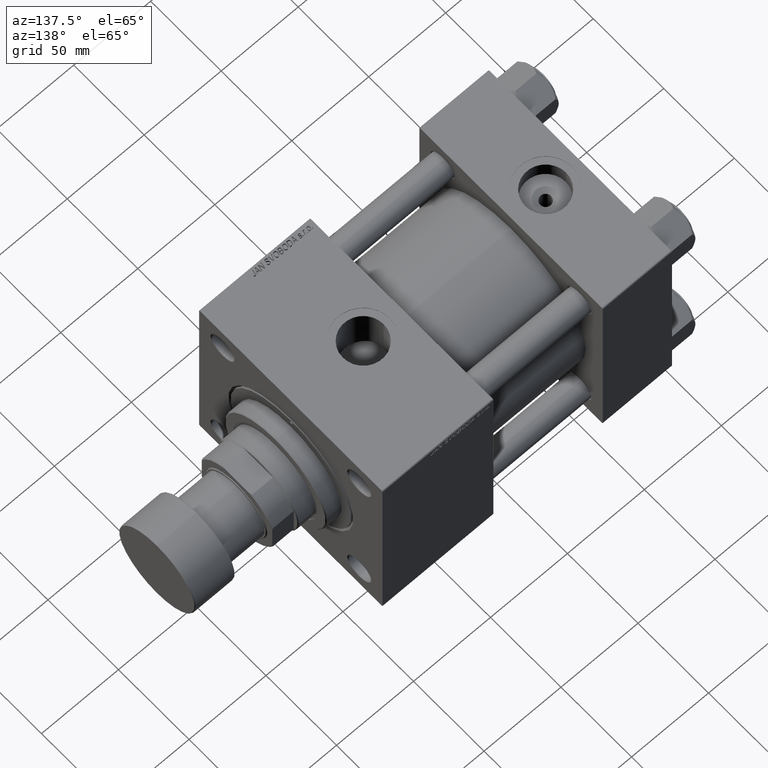
[diagram: clean part render]
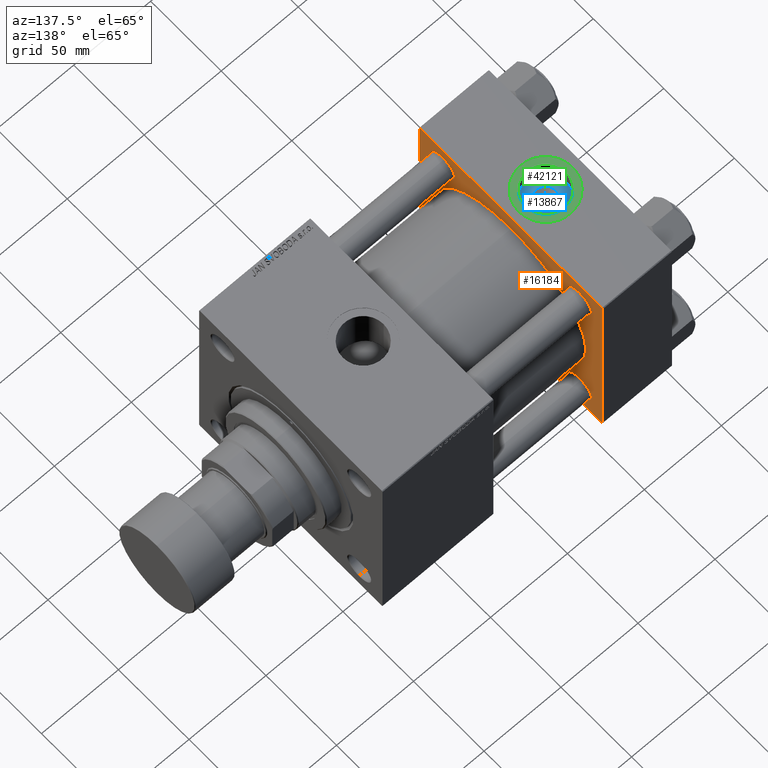
[diagram: same view with three faces highlighted in distinct colors, each labeled with its STEP entity id]
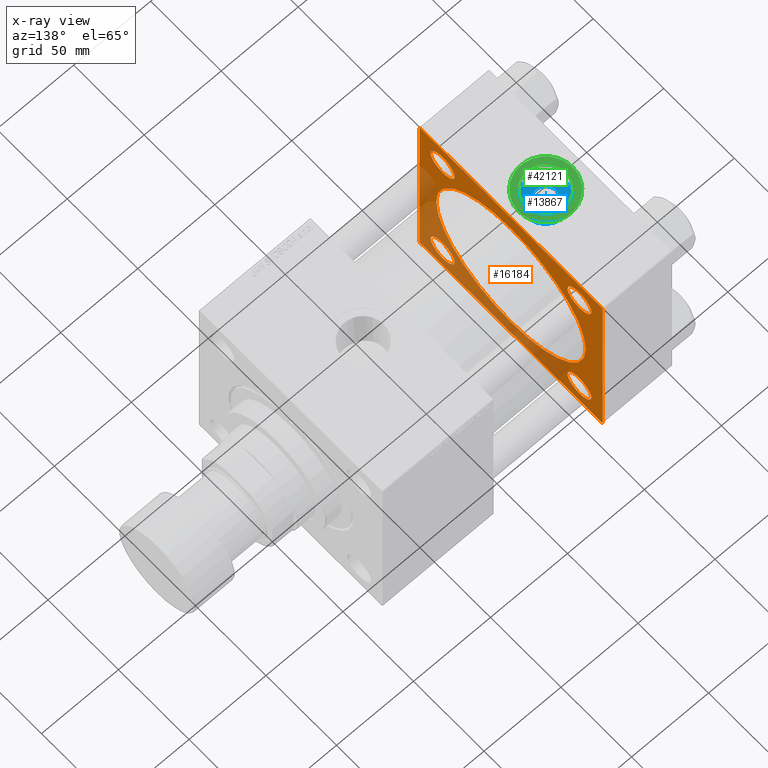
[diagram: x-ray of the same camera — body ghosted, the three highlighted faces saturated]
A machine part, auxiliary view with three faces highlighted in distinct colors.
The next image is the same camera in x-ray (body ghosted, the three faces saturated) — at least one of them is partly hidden behind the body in this view.
Their STEP definitions:

[orange] entity #16184 — the highlighted planar face has unit normal (-1, 0, 0).
#51 = DIRECTION ( 'NONE',  ( 0.000000000000000000, 0.000000000000000000, 1.000000000000000000 ) ) ;
#259 = CARTESIAN_POINT ( 'NONE',  ( 45.00000000000000000, 65.00000000000000000, 64.49999999999998579 ) ) ;
#682 = CARTESIAN_POINT ( 'NONE',  ( 45.00000000000000000, -48.44999999999999574, -56.95000000000000995 ) ) ;
#733 = CARTESIAN_POINT ( 'NONE',  ( 45.00000000000000000, 48.45000000000000995, -48.45000000000001705 ) ) ;
#931 = CARTESIAN_POINT ( 'NONE',  ( 45.00000000000000000, -2.602085213965210642E-15, 0.000000000000000000 ) ) ;
#1048 = EDGE_CURVE ( 'NONE', #11927, #34773, #30680, .T. ) ;
#1322 = FACE_BOUND ( 'NONE', #5526, .T. ) ;
#1443 = EDGE_CURVE ( 'NONE', #11927, #16855, #26175, .T. ) ;
#1622 = DIRECTION ( 'NONE',  ( 0.000000000000000000, 0.7071067811865279218, -0.7071067811865671127 ) ) ;
#1883 = DIRECTION ( 'NONE',  ( 0.000000000000000000, 0.000000000000000000, 1.000000000000000000 ) ) ;
#2495 = VERTEX_POINT ( 'NONE', #40922 ) ;
#2623 = ORIENTED_EDGE ( 'NONE', *, *, #30315, .T. ) ;
#2943 = LINE ( 'NONE', #19883, #26907 ) ;
#3199 = CARTESIAN_POINT ( 'NONE',  ( 45.00000000000000000, -48.44999999999999574, -48.45000000000003126 ) ) ;
#3562 = ORIENTED_EDGE ( 'NONE', *, *, #15071, .T. ) ;
#3709 = CARTESIAN_POINT ( 'NONE',  ( 45.00000000000000000, -65.00000000000000000, 64.50000000000000000 ) ) ;
#3928 = CIRCLE ( 'NONE', #45082, 8.499999999999980460 ) ;
#4007 = EDGE_CURVE ( 'NONE', #23233, #16855, #10660, .T. ) ;
#4084 = DIRECTION ( 'NONE',  ( 0.000000000000000000, 0.000000000000000000, 1.000000000000000000 ) ) ;
#4311 = ORIENTED_EDGE ( 'NONE', *, *, #18608, .T. ) ;
#4836 = FACE_OUTER_BOUND ( 'NONE', #17631, .T. ) ;
#4934 = EDGE_CURVE ( 'NONE', #10087, #2495, #46285, .T. ) ;
#5041 = VECTOR ( 'NONE', #50330, 1000.000000000000114 ) ;
#5069 = ORIENTED_EDGE ( 'NONE', *, *, #1443, .T. ) ;
#5100 = FACE_BOUND ( 'NONE', #37903, .T. ) ;
#5206 = VERTEX_POINT ( 'NONE', #36631 ) ;
#5283 = DIRECTION ( 'NONE',  ( 0.000000000000000000, -1.000000000000000000, -1.067522139062650425E-16 ) ) ;
#5526 = EDGE_LOOP ( 'NONE', ( #3562, #45561 ) ) ;
#5580 = ORIENTED_EDGE ( 'NONE', *, *, #22399, .T. ) ;
#6180 = CARTESIAN_POINT ( 'NONE',  ( 45.00000000000000000, 64.49999999999997158, 65.00000000000001421 ) ) ;
#6301 = ORIENTED_EDGE ( 'NONE', *, *, #1048, .F. ) ;
#6539 = CIRCLE ( 'NONE', #36547, 8.499999999999980460 ) ;
#6829 = VERTEX_POINT ( 'NONE', #49842 ) ;
#6883 = EDGE_CURVE ( 'NONE', #31161, #6829, #17377, .T. ) ;
#7440 = VERTEX_POINT ( 'NONE', #45613 ) ;
#7790 = DIRECTION ( 'NONE',  ( 0.000000000000000000, 0.000000000000000000, -1.000000000000000000 ) ) ;
#7852 = ORIENTED_EDGE ( 'NONE', *, *, #6883, .T. ) ;
#7929 = CARTESIAN_POINT ( 'NONE',  ( 45.00000000000000000, 48.45000000000000995, -39.95000000000003126 ) ) ;
#8262 = ORIENTED_EDGE ( 'NONE', *, *, #52445, .T. ) ;
#8948 = CARTESIAN_POINT ( 'NONE',  ( 45.00000000000000000, -2.602085213965210642E-15, 53.00000000000000711 ) ) ;
#9305 = EDGE_LOOP ( 'NONE', ( #5580, #37416 ) ) ;
#9828 = EDGE_LOOP ( 'NONE', ( #24565, #24310 ) ) ;
#10087 = VERTEX_POINT ( 'NONE', #28875 ) ;
#10336 = ORIENTED_EDGE ( 'NONE', *, *, #39662, .T. ) ;
#10660 = LINE ( 'NONE', #27026, #23989 ) ;
#10750 = DIRECTION ( 'NONE',  ( 0.000000000000000000, -0.7071067811865474617, 0.7071067811865474617 ) ) ;
#11371 = VERTEX_POINT ( 'NONE', #50767 ) ;
#11927 = VERTEX_POINT ( 'NONE', #28304 ) ;
#12189 = CIRCLE ( 'NONE', #27572, 8.499999999999980460 ) ;
#12415 = CARTESIAN_POINT ( 'NONE',  ( 45.00000000000000000, -2.602085213965210642E-15, 0.000000000000000000 ) ) ;
#12666 = AXIS2_PLACEMENT_3D ( 'NONE', #13640, #41112, #51 ) ;
#12727 = VECTOR ( 'NONE', #20405, 1000.000000000000000 ) ;
#12912 = FACE_BOUND ( 'NONE', #9828, .T. ) ;
#13112 = EDGE_CURVE ( 'NONE', #26913, #39814, #42490, .T. ) ;
#13406 = EDGE_CURVE ( 'NONE', #11371, #34773, #42943, .T. ) ;
#13409 = EDGE_CURVE ( 'NONE', #7440, #27528, #3928, .T. ) ;
#13640 = CARTESIAN_POINT ( 'NONE',  ( 45.00000000000000000, 48.45000000000000995, -48.45000000000001705 ) ) ;
#13688 = FACE_BOUND ( 'NONE', #16934, .T. ) ;
#14149 = VERTEX_POINT ( 'NONE', #7929 ) ;
#14519 = CARTESIAN_POINT ( 'NONE',  ( 45.00000000000000000, -64.49999999999994316, -65.00000000000000000 ) ) ;
#14700 = DIRECTION ( 'NONE',  ( -1.000000000000000000, 0.000000000000000000, -0.000000000000000000 ) ) ;
#14787 = CARTESIAN_POINT ( 'NONE',  ( 45.00000000000000000, -48.44999999999999574, -48.45000000000003126 ) ) ;
#15071 = EDGE_CURVE ( 'NONE', #22182, #46813, #6539, .T. ) ;
#15156 = CARTESIAN_POINT ( 'NONE',  ( 45.00000000000000000, 48.45000000000000995, 48.45000000000001705 ) ) ;
#15331 = ORIENTED_EDGE ( 'NONE', *, *, #13409, .T. ) ;
#15442 = ORIENTED_EDGE ( 'NONE', *, *, #13112, .F. ) ;
#16184 = ADVANCED_FACE ( 'NONE', ( #5100, #41598, #1322, #12912, #13688, #4836 ), #24992, .F. ) ;
#16831 = AXIS2_PLACEMENT_3D ( 'NONE', #12415, #20208, #19943 ) ;
#16855 = VERTEX_POINT ( 'NONE', #44437 ) ;
#16934 = EDGE_LOOP ( 'NONE', ( #15442, #46218 ) ) ;
#17120 = ORIENTED_EDGE ( 'NONE', *, *, #4007, .F. ) ;
#17377 = LINE ( 'NONE', #24912, #26860 ) ;
#17584 = CARTESIAN_POINT ( 'NONE',  ( 45.00000000000000000, -48.44999999999999574, 56.95000000000000995 ) ) ;
#17631 = EDGE_LOOP ( 'NONE', ( #6301, #5069, #17120, #8262, #7852, #4311, #10336, #47915 ) ) ;
#17776 = AXIS2_PLACEMENT_3D ( 'NONE', #29030, #24732, #21745 ) ;
#18018 = DIRECTION ( 'NONE',  ( -1.000000000000000000, 0.000000000000000000, -0.000000000000000000 ) ) ;
#18608 = EDGE_CURVE ( 'NONE', #6829, #51852, #36732, .T. ) ;
#19470 = VECTOR ( 'NONE', #28953, 1000.000000000000000 ) ;
#19883 = CARTESIAN_POINT ( 'NONE',  ( 45.00000000000000000, -65.00000000000000000, 65.00000000000000000 ) ) ;
#19943 = DIRECTION ( 'NONE',  ( 0.000000000000000000, 0.000000000000000000, 1.000000000000000000 ) ) ;
#20208 = DIRECTION ( 'NONE',  ( 1.000000000000000000, -0.000000000000000000, 0.000000000000000000 ) ) ;
#20405 = DIRECTION ( 'NONE',  ( 0.000000000000000000, -1.000000000000000000, -1.067522139062650425E-16 ) ) ;
#20906 = CIRCLE ( 'NONE', #41427, 53.00000000000000711 ) ;
#21745 = DIRECTION ( 'NONE',  ( -0.000000000000000000, 0.000000000000000000, 1.000000000000000000 ) ) ;
#22182 = VERTEX_POINT ( 'NONE', #41651 ) ;
#22399 = EDGE_CURVE ( 'NONE', #5206, #14149, #51308, .T. ) ;
#23002 = DIRECTION ( 'NONE',  ( 0.000000000000000000, 0.000000000000000000, -1.000000000000000000 ) ) ;
#23233 = VERTEX_POINT ( 'NONE', #259 ) ;
#23989 = VECTOR ( 'NONE', #23002, 1000.000000000000000 ) ;
#24310 = ORIENTED_EDGE ( 'NONE', *, *, #4934, .T. ) ;
#24527 = EDGE_CURVE ( 'NONE', #2495, #10087, #51381, .T. ) ;
#24565 = ORIENTED_EDGE ( 'NONE', *, *, #24527, .T. ) ;
#24732 = DIRECTION ( 'NONE',  ( -1.000000000000000000, 0.000000000000000000, -0.000000000000000000 ) ) ;
#24912 = CARTESIAN_POINT ( 'NONE',  ( 45.00000000000000000, 65.00000000000000000, 65.00000000000001421 ) ) ;
#24992 = PLANE ( 'NONE',  #17776 ) ;
#26175 = LINE ( 'NONE', #33977, #5041 ) ;
#26860 = VECTOR ( 'NONE', #5283, 1000.000000000000000 ) ;
#26907 = VECTOR ( 'NONE', #7790, 1000.000000000000000 ) ;
#26913 = VERTEX_POINT ( 'NONE', #8948 ) ;
#27026 = CARTESIAN_POINT ( 'NONE',  ( 45.00000000000000000, 65.00000000000000000, 65.00000000000001421 ) ) ;
#27212 = CIRCLE ( 'NONE', #12666, 8.499999999999980460 ) ;
#27495 = DIRECTION ( 'NONE',  ( 0.000000000000000000, 0.000000000000000000, 1.000000000000000000 ) ) ;
#27528 = VERTEX_POINT ( 'NONE', #682 ) ;
#27572 = AXIS2_PLACEMENT_3D ( 'NONE', #3199, #44256, #40774 ) ;
#28304 = CARTESIAN_POINT ( 'NONE',  ( 45.00000000000000000, 64.49999999999997158, -64.99999999999998579 ) ) ;
#28875 = CARTESIAN_POINT ( 'NONE',  ( 45.00000000000000000, 48.45000000000000995, 56.94999999999999574 ) ) ;
#28953 = DIRECTION ( 'NONE',  ( -0.000000000000000000, -0.7071067811865672237, -0.7071067811865279218 ) ) ;
#29030 = CARTESIAN_POINT ( 'NONE',  ( 45.00000000000000000, 0.000000000000000000, 0.000000000000000000 ) ) ;
#29470 = DIRECTION ( 'NONE',  ( 0.000000000000000000, 0.000000000000000000, 1.000000000000000000 ) ) ;
#29667 = DIRECTION ( 'NONE',  ( 1.000000000000000000, -0.000000000000000000, 0.000000000000000000 ) ) ;
#30315 = EDGE_CURVE ( 'NONE', #27528, #7440, #12189, .T. ) ;
#30680 = LINE ( 'NONE', #48290, #12727 ) ;
#31161 = VERTEX_POINT ( 'NONE', #41829 ) ;
#31608 = CARTESIAN_POINT ( 'NONE',  ( 45.00000000000000000, 48.45000000000000995, 48.45000000000001705 ) ) ;
#33337 = AXIS2_PLACEMENT_3D ( 'NONE', #733, #41012, #29470 ) ;
#33977 = CARTESIAN_POINT ( 'NONE',  ( 45.00000000000000000, 65.00000000000000000, -64.49999999999995737 ) ) ;
#34617 = EDGE_CURVE ( 'NONE', #39814, #26913, #20906, .T. ) ;
#34773 = VERTEX_POINT ( 'NONE', #44907 ) ;
#35362 = DIRECTION ( 'NONE',  ( 0.000000000000000000, 0.000000000000000000, 1.000000000000000000 ) ) ;
#36547 = AXIS2_PLACEMENT_3D ( 'NONE', #51823, #43767, #48333 ) ;
#36631 = CARTESIAN_POINT ( 'NONE',  ( 45.00000000000000000, 48.45000000000000995, -56.94999999999999574 ) ) ;
#36732 = LINE ( 'NONE', #3709, #19470 ) ;
#37416 = ORIENTED_EDGE ( 'NONE', *, *, #48126, .T. ) ;
#37903 = EDGE_LOOP ( 'NONE', ( #2623, #15331 ) ) ;
#38595 = AXIS2_PLACEMENT_3D ( 'NONE', #31608, #14700, #35362 ) ;
#39662 = EDGE_CURVE ( 'NONE', #51852, #11371, #2943, .T. ) ;
#39814 = VERTEX_POINT ( 'NONE', #46107 ) ;
#39816 = DIRECTION ( 'NONE',  ( -1.000000000000000000, 0.000000000000000000, -0.000000000000000000 ) ) ;
#40774 = DIRECTION ( 'NONE',  ( 0.000000000000000000, 0.000000000000000000, 1.000000000000000000 ) ) ;
#40853 = CARTESIAN_POINT ( 'NONE',  ( 45.00000000000000000, -48.44999999999999574, 48.45000000000003126 ) ) ;
#40922 = CARTESIAN_POINT ( 'NONE',  ( 45.00000000000000000, 48.45000000000000995, 39.95000000000003126 ) ) ;
#41012 = DIRECTION ( 'NONE',  ( -1.000000000000000000, 0.000000000000000000, -0.000000000000000000 ) ) ;
#41112 = DIRECTION ( 'NONE',  ( -1.000000000000000000, 0.000000000000000000, -0.000000000000000000 ) ) ;
#41427 = AXIS2_PLACEMENT_3D ( 'NONE', #931, #29667, #46008 ) ;
#41598 = FACE_BOUND ( 'NONE', #9305, .T. ) ;
#41651 = CARTESIAN_POINT ( 'NONE',  ( 45.00000000000000000, -48.44999999999999574, 39.95000000000004547 ) ) ;
#41829 = CARTESIAN_POINT ( 'NONE',  ( 45.00000000000000000, 64.49999999999997158, 65.00000000000001421 ) ) ;
#42490 = CIRCLE ( 'NONE', #16831, 53.00000000000000711 ) ;
#42938 = LINE ( 'NONE', #6180, #46923 ) ;
#42943 = LINE ( 'NONE', #14519, #45945 ) ;
#43651 = CARTESIAN_POINT ( 'NONE',  ( 45.00000000000000000, -65.00000000000000000, 64.50000000000000000 ) ) ;
#43767 = DIRECTION ( 'NONE',  ( -1.000000000000000000, 0.000000000000000000, -0.000000000000000000 ) ) ;
#43890 = EDGE_CURVE ( 'NONE', #46813, #22182, #49353, .T. ) ;
#44256 = DIRECTION ( 'NONE',  ( -1.000000000000000000, 0.000000000000000000, -0.000000000000000000 ) ) ;
#44437 = CARTESIAN_POINT ( 'NONE',  ( 45.00000000000000000, 65.00000000000000000, -64.49999999999995737 ) ) ;
#44907 = CARTESIAN_POINT ( 'NONE',  ( 45.00000000000000000, -64.49999999999994316, -65.00000000000000000 ) ) ;
#45082 = AXIS2_PLACEMENT_3D ( 'NONE', #14787, #18018, #1883 ) ;
#45561 = ORIENTED_EDGE ( 'NONE', *, *, #43890, .T. ) ;
#45613 = CARTESIAN_POINT ( 'NONE',  ( 45.00000000000000000, -48.44999999999999574, -39.95000000000004547 ) ) ;
#45881 = AXIS2_PLACEMENT_3D ( 'NONE', #40853, #49435, #4084 ) ;
#45945 = VECTOR ( 'NONE', #1622, 1000.000000000000000 ) ;
#46008 = DIRECTION ( 'NONE',  ( 0.000000000000000000, 0.000000000000000000, 1.000000000000000000 ) ) ;
#46107 = CARTESIAN_POINT ( 'NONE',  ( 45.00000000000000000, 3.888542821515762466E-15, -53.00000000000000711 ) ) ;
#46218 = ORIENTED_EDGE ( 'NONE', *, *, #34617, .F. ) ;
#46285 = CIRCLE ( 'NONE', #38595, 8.499999999999980460 ) ;
#46813 = VERTEX_POINT ( 'NONE', #17584 ) ;
#46923 = VECTOR ( 'NONE', #10750, 1000.000000000000114 ) ;
#47915 = ORIENTED_EDGE ( 'NONE', *, *, #13406, .T. ) ;
#48126 = EDGE_CURVE ( 'NONE', #14149, #5206, #27212, .T. ) ;
#48290 = CARTESIAN_POINT ( 'NONE',  ( 45.00000000000000000, 65.00000000000000000, -64.99999999999998579 ) ) ;
#48333 = DIRECTION ( 'NONE',  ( 0.000000000000000000, 0.000000000000000000, 1.000000000000000000 ) ) ;
#49353 = CIRCLE ( 'NONE', #45881, 8.499999999999980460 ) ;
#49435 = DIRECTION ( 'NONE',  ( -1.000000000000000000, 0.000000000000000000, -0.000000000000000000 ) ) ;
#49842 = CARTESIAN_POINT ( 'NONE',  ( 45.00000000000000000, -64.49999999999997158, 65.00000000000000000 ) ) ;
#50330 = DIRECTION ( 'NONE',  ( -0.000000000000000000, 0.7071067811865474617, 0.7071067811865474617 ) ) ;
#50767 = CARTESIAN_POINT ( 'NONE',  ( 45.00000000000000000, -65.00000000000000000, -64.49999999999991473 ) ) ;
#51308 = CIRCLE ( 'NONE', #33337, 8.499999999999980460 ) ;
#51381 = CIRCLE ( 'NONE', #52227, 8.499999999999980460 ) ;
#51823 = CARTESIAN_POINT ( 'NONE',  ( 45.00000000000000000, -48.44999999999999574, 48.45000000000003126 ) ) ;
#51852 = VERTEX_POINT ( 'NONE', #43651 ) ;
#52227 = AXIS2_PLACEMENT_3D ( 'NONE', #15156, #39816, #27495 ) ;
#52445 = EDGE_CURVE ( 'NONE', #23233, #31161, #42938, .T. ) ;

[blue] entity #13867 — the highlighted planar face has unit normal (0, 0, 1).
#374 = AXIS2_PLACEMENT_3D ( 'NONE', #6682, #38882, #30583 ) ;
#2017 = FACE_OUTER_BOUND ( 'NONE', #15472, .T. ) ;
#2138 = VERTEX_POINT ( 'NONE', #27401 ) ;
#5489 = CIRCLE ( 'NONE', #374, 6.640000000000034319 ) ;
#6358 = VERTEX_POINT ( 'NONE', #42425 ) ;
#6682 = CARTESIAN_POINT ( 'NONE',  ( 22.50000000000000000, -8.673617379884035472E-15, 54.19999999999999574 ) ) ;
#6961 = DIRECTION ( 'NONE',  ( 1.000000000000000000, 0.000000000000000000, 0.000000000000000000 ) ) ;
#8241 = AXIS2_PLACEMENT_3D ( 'NONE', #37994, #30760, #13585 ) ;
#9558 = FACE_BOUND ( 'NONE', #11892, .T. ) ;
#9584 = EDGE_CURVE ( 'NONE', #2138, #27308, #5489, .T. ) ;
#10296 = DIRECTION ( 'NONE',  ( 0.000000000000000000, 0.000000000000000000, 1.000000000000000000 ) ) ;
#10489 = CARTESIAN_POINT ( 'NONE',  ( 22.50000000000000000, -8.673617379884035472E-15, 54.19999999999999574 ) ) ;
#10517 = EDGE_CURVE ( 'NONE', #27308, #2138, #12431, .T. ) ;
#10556 = CARTESIAN_POINT ( 'NONE',  ( 22.50000000000000000, -8.673617379884035472E-15, 54.19999999999999574 ) ) ;
#10826 = DIRECTION ( 'NONE',  ( 1.000000000000000000, 0.000000000000000000, 0.000000000000000000 ) ) ;
#11892 = EDGE_LOOP ( 'NONE', ( #14130, #37477 ) ) ;
#12431 = CIRCLE ( 'NONE', #26964, 6.640000000000034319 ) ;
#13345 = EDGE_CURVE ( 'NONE', #22704, #6358, #25381, .T. ) ;
#13585 = DIRECTION ( 'NONE',  ( 1.000000000000000000, 0.000000000000000000, -0.000000000000000000 ) ) ;
#13867 = ADVANCED_FACE ( 'NONE', ( #9558, #2017 ), #31022, .T. ) ;
#14130 = ORIENTED_EDGE ( 'NONE', *, *, #10517, .T. ) ;
#15100 = AXIS2_PLACEMENT_3D ( 'NONE', #10489, #46705, #27122 ) ;
#15472 = EDGE_LOOP ( 'NONE', ( #27467, #48821 ) ) ;
#19311 = DIRECTION ( 'NONE',  ( -0.000000000000000000, -0.000000000000000000, -1.000000000000000000 ) ) ;
#19847 = CIRCLE ( 'NONE', #49810, 13.22000000000000242 ) ;
#21498 = CARTESIAN_POINT ( 'NONE',  ( 29.14000000000003254, -8.673617379884035472E-15, 54.19999999999999574 ) ) ;
#22704 = VERTEX_POINT ( 'NONE', #40938 ) ;
#23064 = CARTESIAN_POINT ( 'NONE',  ( 22.50000000000000000, -8.673617379884035472E-15, 54.19999999999999574 ) ) ;
#25381 = CIRCLE ( 'NONE', #15100, 13.22000000000000242 ) ;
#26964 = AXIS2_PLACEMENT_3D ( 'NONE', #23064, #19311, #6961 ) ;
#27122 = DIRECTION ( 'NONE',  ( 1.000000000000000000, 0.000000000000000000, 0.000000000000000000 ) ) ;
#27308 = VERTEX_POINT ( 'NONE', #21498 ) ;
#27401 = CARTESIAN_POINT ( 'NONE',  ( 15.85999999999996390, -7.860451905250189418E-15, 54.19999999999999574 ) ) ;
#27467 = ORIENTED_EDGE ( 'NONE', *, *, #32618, .T. ) ;
#30583 = DIRECTION ( 'NONE',  ( 1.000000000000000000, 0.000000000000000000, 0.000000000000000000 ) ) ;
#30760 = DIRECTION ( 'NONE',  ( 0.000000000000000000, 0.000000000000000000, 1.000000000000000000 ) ) ;
#31022 = PLANE ( 'NONE',  #8241 ) ;
#32618 = EDGE_CURVE ( 'NONE', #6358, #22704, #19847, .T. ) ;
#37477 = ORIENTED_EDGE ( 'NONE', *, *, #9584, .T. ) ;
#37994 = CARTESIAN_POINT ( 'NONE',  ( 22.50000000000000000, -8.673617379884035472E-15, 54.19999999999999574 ) ) ;
#38882 = DIRECTION ( 'NONE',  ( -0.000000000000000000, -0.000000000000000000, -1.000000000000000000 ) ) ;
#40938 = CARTESIAN_POINT ( 'NONE',  ( 9.279999999999994031, -7.054634311411234321E-15, 54.19999999999999574 ) ) ;
#42425 = CARTESIAN_POINT ( 'NONE',  ( 35.71999999999999886, -8.673617379884035472E-15, 54.19999999999999574 ) ) ;
#46705 = DIRECTION ( 'NONE',  ( 0.000000000000000000, 0.000000000000000000, 1.000000000000000000 ) ) ;
#48821 = ORIENTED_EDGE ( 'NONE', *, *, #13345, .T. ) ;
#49810 = AXIS2_PLACEMENT_3D ( 'NONE', #10556, #10296, #10826 ) ;

[green] entity #42121 — the highlighted planar face has unit normal (0, 0, 1).
#959 = EDGE_LOOP ( 'NONE', ( #17082, #32440 ) ) ;
#966 = PLANE ( 'NONE',  #9897 ) ;
#4908 = DIRECTION ( 'NONE',  ( 0.000000000000000000, 0.000000000000000000, 1.000000000000000000 ) ) ;
#5518 = DIRECTION ( 'NONE',  ( 0.000000000000000000, 0.000000000000000000, 1.000000000000000000 ) ) ;
#5722 = VERTEX_POINT ( 'NONE', #46706 ) ;
#5932 = DIRECTION ( 'NONE',  ( 0.000000000000000000, 0.000000000000000000, 1.000000000000000000 ) ) ;
#6285 = CIRCLE ( 'NONE', #16631, 17.50000000000000000 ) ;
#6706 = CARTESIAN_POINT ( 'NONE',  ( 9.279999999999994031, -7.054634311411234321E-15, 64.79999999999999716 ) ) ;
#6916 = DIRECTION ( 'NONE',  ( 1.000000000000000000, 0.000000000000000000, 0.000000000000000000 ) ) ;
#8432 = CARTESIAN_POINT ( 'NONE',  ( 22.50000000000000000, -8.673617379884035472E-15, 64.79999999999999716 ) ) ;
#9656 = CIRCLE ( 'NONE', #46502, 13.22000000000000242 ) ;
#9897 = AXIS2_PLACEMENT_3D ( 'NONE', #17355, #5518, #13855 ) ;
#10229 = CARTESIAN_POINT ( 'NONE',  ( 22.50000000000000000, -8.673617379884035472E-15, 64.79999999999999716 ) ) ;
#10607 = VERTEX_POINT ( 'NONE', #16358 ) ;
#10773 = CIRCLE ( 'NONE', #33084, 17.50000000000000000 ) ;
#10945 = CARTESIAN_POINT ( 'NONE',  ( 22.50000000000000000, -8.673617379884035472E-15, 64.79999999999999716 ) ) ;
#11134 = DIRECTION ( 'NONE',  ( 0.000000000000000000, 0.000000000000000000, 1.000000000000000000 ) ) ;
#12877 = EDGE_CURVE ( 'NONE', #5722, #10607, #10773, .T. ) ;
#13855 = DIRECTION ( 'NONE',  ( 1.000000000000000000, 0.000000000000000000, -0.000000000000000000 ) ) ;
#16358 = CARTESIAN_POINT ( 'NONE',  ( 4.999999999999997335, -6.530485481376167224E-15, 64.79999999999999716 ) ) ;
#16631 = AXIS2_PLACEMENT_3D ( 'NONE', #8432, #4908, #37389 ) ;
#17082 = ORIENTED_EDGE ( 'NONE', *, *, #12877, .T. ) ;
#17355 = CARTESIAN_POINT ( 'NONE',  ( 22.50000000000000000, -8.673617379884035472E-15, 64.79999999999999716 ) ) ;
#19536 = DIRECTION ( 'NONE',  ( 0.000000000000000000, 0.000000000000000000, 1.000000000000000000 ) ) ;
#24550 = ORIENTED_EDGE ( 'NONE', *, *, #36716, .F. ) ;
#25397 = FACE_BOUND ( 'NONE', #34250, .T. ) ;
#30295 = ORIENTED_EDGE ( 'NONE', *, *, #37910, .F. ) ;
#32440 = ORIENTED_EDGE ( 'NONE', *, *, #34744, .T. ) ;
#33084 = AXIS2_PLACEMENT_3D ( 'NONE', #10945, #19536, #6916 ) ;
#34250 = EDGE_LOOP ( 'NONE', ( #30295, #24550 ) ) ;
#34491 = CARTESIAN_POINT ( 'NONE',  ( 22.50000000000000000, -8.673617379884035472E-15, 64.79999999999999716 ) ) ;
#34744 = EDGE_CURVE ( 'NONE', #10607, #5722, #6285, .T. ) ;
#36440 = FACE_OUTER_BOUND ( 'NONE', #959, .T. ) ;
#36716 = EDGE_CURVE ( 'NONE', #51501, #42272, #48325, .T. ) ;
#37389 = DIRECTION ( 'NONE',  ( 1.000000000000000000, 0.000000000000000000, 0.000000000000000000 ) ) ;
#37910 = EDGE_CURVE ( 'NONE', #42272, #51501, #9656, .T. ) ;
#42121 = ADVANCED_FACE ( 'NONE', ( #25397, #36440 ), #966, .T. ) ;
#42272 = VERTEX_POINT ( 'NONE', #43606 ) ;
#42414 = DIRECTION ( 'NONE',  ( 1.000000000000000000, 0.000000000000000000, 0.000000000000000000 ) ) ;
#42782 = DIRECTION ( 'NONE',  ( 1.000000000000000000, 0.000000000000000000, 0.000000000000000000 ) ) ;
#43606 = CARTESIAN_POINT ( 'NONE',  ( 35.71999999999999886, -8.673617379884035472E-15, 64.79999999999999716 ) ) ;
#46502 = AXIS2_PLACEMENT_3D ( 'NONE', #34491, #11134, #42782 ) ;
#46706 = CARTESIAN_POINT ( 'NONE',  ( 40.00000000000000000, -8.673617379884035472E-15, 64.79999999999999716 ) ) ;
#47467 = AXIS2_PLACEMENT_3D ( 'NONE', #10229, #5932, #42414 ) ;
#48325 = CIRCLE ( 'NONE', #47467, 13.22000000000000242 ) ;
#51501 = VERTEX_POINT ( 'NONE', #6706 ) ;